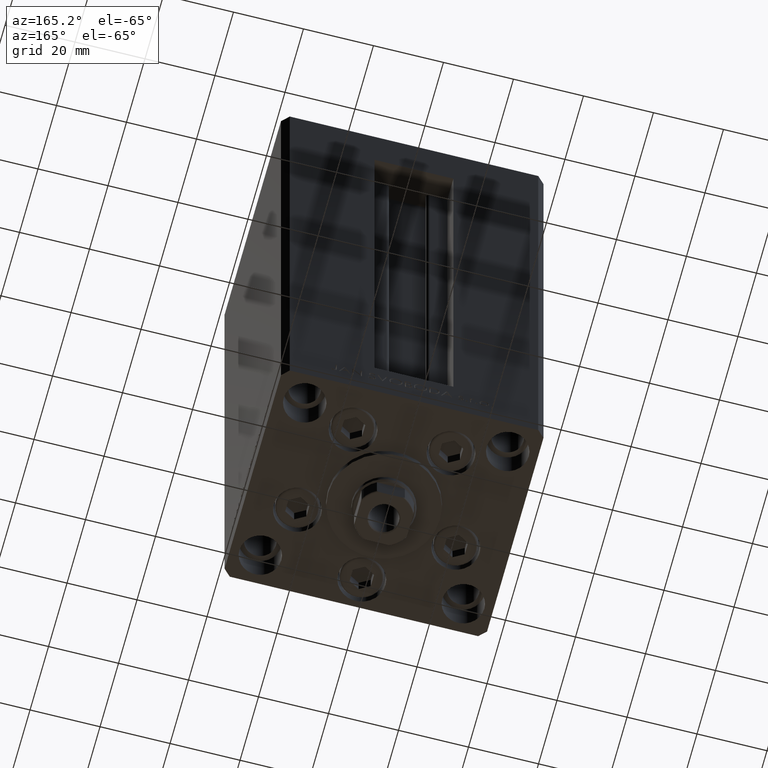
[diagram: clean part render]
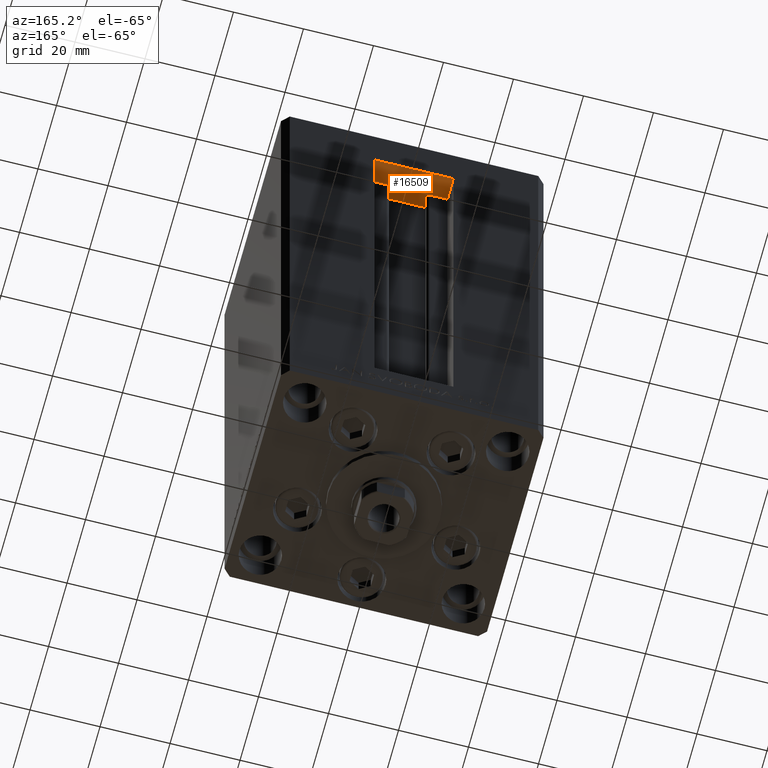
[diagram: same view with one face highlighted and labeled with its STEP entity id]
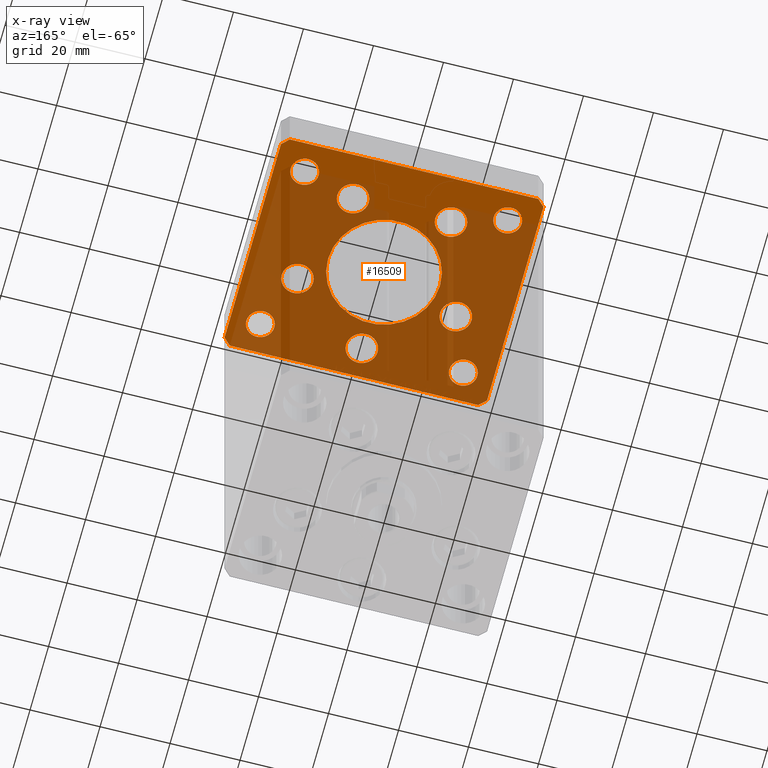
[diagram: x-ray of the same camera — body ghosted, the highlighted face saturated]
A machine part, auxiliary view. The second image highlights one B-rep face of the part: STEP entity #16509.
The next image is the same camera in x-ray: the body ghosted, the highlighted face saturated — about 77% of this face is hidden behind the body in this view.
In plain terms, the highlighted planar face has unit normal (0, 0, 1).
Its self-contained STEP definition (entity closure, byte-faithful):
#410 = ORIENTED_EDGE ( 'NONE', *, *, #39543, .F. ) ;
#433 = ORIENTED_EDGE ( 'NONE', *, *, #23960, .F. ) ;
#523 = CARTESIAN_POINT ( 'NONE',  ( 2.939152317953647500E-15, -24.00000000000000000, -15.00000000000000000 ) ) ;
#935 = VERTEX_POINT ( 'NONE', #26343 ) ;
#1130 = EDGE_CURVE ( 'NONE', #17500, #26608, #20383, .T. ) ;
#1135 = CARTESIAN_POINT ( 'NONE',  ( -29.00000000000001066, -23.99999999999999289, -15.00000000000000000 ) ) ;
#1164 = CARTESIAN_POINT ( 'NONE',  ( 22.62741699796951877, -8.000000000000000000, -15.00000000000000000 ) ) ;
#1463 = CIRCLE ( 'NONE', #15893, 4.499999999999999112 ) ;
#1628 = EDGE_CURVE ( 'NONE', #44426, #14708, #7550, .T. ) ;
#2019 = CIRCLE ( 'NONE', #29289, 16.00000000000000000 ) ;
#2107 = VERTEX_POINT ( 'NONE', #4165 ) ;
#2177 = EDGE_LOOP ( 'NONE', ( #3129, #42105 ) ) ;
#2377 = EDGE_CURVE ( 'NONE', #24605, #42538, #17900, .T. ) ;
#2591 = CIRCLE ( 'NONE', #15440, 4.500000000000001776 ) ;
#2601 = DIRECTION ( 'NONE',  ( 0.000000000000000000, 0.000000000000000000, 1.000000000000000000 ) ) ;
#2948 = CARTESIAN_POINT ( 'NONE',  ( 37.49999999999992184, 30.50000000000001066, -15.00000000000000000 ) ) ;
#3129 = ORIENTED_EDGE ( 'NONE', *, *, #29669, .F. ) ;
#3382 = DIRECTION ( 'NONE',  ( 0.000000000000000000, -0.000000000000000000, -1.000000000000000000 ) ) ;
#3447 = DIRECTION ( 'NONE',  ( 1.000000000000000000, 0.000000000000000000, 0.000000000000000000 ) ) ;
#3512 = VERTEX_POINT ( 'NONE', #40614 ) ;
#3766 = EDGE_LOOP ( 'NONE', ( #39933, #10278, #10930, #16009, #35287, #12317, #44558, #36524 ) ) ;
#3919 = DIRECTION ( 'NONE',  ( 0.7071067811865474617, -0.7071067811865474617, 0.000000000000000000 ) ) ;
#4007 = CIRCLE ( 'NONE', #46509, 4.499999999999997335 ) ;
#4165 = CARTESIAN_POINT ( 'NONE',  ( -16.00000000000000000, 1.959434878635764737E-15, -15.00000000000000000 ) ) ;
#4386 = VERTEX_POINT ( 'NONE', #14781 ) ;
#4736 = CIRCLE ( 'NONE', #30424, 4.500000000000005329 ) ;
#4826 = LINE ( 'NONE', #42527, #31459 ) ;
#5318 = EDGE_CURVE ( 'NONE', #32528, #43760, #7215, .T. ) ;
#5419 = AXIS2_PLACEMENT_3D ( 'NONE', #27533, #16465, #19998 ) ;
#5450 = AXIS2_PLACEMENT_3D ( 'NONE', #37735, #10610, #41751 ) ;
#5647 = DIRECTION ( 'NONE',  ( 0.000000000000000000, -0.000000000000000000, -1.000000000000000000 ) ) ;
#5883 = CARTESIAN_POINT ( 'NONE',  ( 35.50000000000000711, -32.50000000000000711, -15.00000000000000000 ) ) ;
#6025 = FACE_BOUND ( 'NONE', #49178, .T. ) ;
#6036 = EDGE_CURVE ( 'NONE', #31344, #2107, #43680, .T. ) ;
#6660 = CARTESIAN_POINT ( 'NONE',  ( -13.99106857963322703, 19.49999999999999645, -15.00000000000000000 ) ) ;
#6667 = VECTOR ( 'NONE', #10110, 1000.000000000000000 ) ;
#6685 = CARTESIAN_POINT ( 'NONE',  ( 13.99106857963322348, 19.50000000000000000, -15.00000000000000000 ) ) ;
#7066 = ORIENTED_EDGE ( 'NONE', *, *, #14424, .F. ) ;
#7164 = CARTESIAN_POINT ( 'NONE',  ( -27.12741699796951877, -8.000000000000005329, -15.00000000000000000 ) ) ;
#7215 = LINE ( 'NONE', #45630, #48476 ) ;
#7333 = CARTESIAN_POINT ( 'NONE',  ( 29.00000000000001066, -23.99999999999999289, -15.00000000000000000 ) ) ;
#7376 = DIRECTION ( 'NONE',  ( -0.7071067811865482389, 0.7071067811865469066, 0.000000000000000000 ) ) ;
#7550 = CIRCLE ( 'NONE', #48366, 4.000000000000003553 ) ;
#7980 = DIRECTION ( 'NONE',  ( 1.000000000000000000, 0.000000000000000000, 0.000000000000000000 ) ) ;
#7995 = CARTESIAN_POINT ( 'NONE',  ( 16.00000000000000000, 0.000000000000000000, -15.00000000000000000 ) ) ;
#8220 = DIRECTION ( 'NONE',  ( 1.000000000000000000, 0.000000000000000000, 0.000000000000000000 ) ) ;
#8333 = DIRECTION ( 'NONE',  ( 0.000000000000000000, -0.000000000000000000, -1.000000000000000000 ) ) ;
#8583 = DIRECTION ( 'NONE',  ( 1.000000000000000000, 0.000000000000000000, 0.000000000000000000 ) ) ;
#8584 = ORIENTED_EDGE ( 'NONE', *, *, #9956, .F. ) ;
#8808 = ORIENTED_EDGE ( 'NONE', *, *, #30426, .F. ) ;
#8936 = DIRECTION ( 'NONE',  ( -1.000000000000000000, -1.954618001100629052E-16, 0.000000000000000000 ) ) ;
#9010 = AXIS2_PLACEMENT_3D ( 'NONE', #37997, #26195, #15387 ) ;
#9126 = ORIENTED_EDGE ( 'NONE', *, *, #49667, .T. ) ;
#9663 = EDGE_LOOP ( 'NONE', ( #30572, #410 ) ) ;
#9952 = EDGE_CURVE ( 'NONE', #26693, #935, #25395, .T. ) ;
#9956 = EDGE_CURVE ( 'NONE', #24048, #45895, #11734, .T. ) ;
#9979 = VERTEX_POINT ( 'NONE', #42635 ) ;
#10106 = CARTESIAN_POINT ( 'NONE',  ( -37.50000000000001421, 30.49999999999998579, -15.00000000000000000 ) ) ;
#10110 = DIRECTION ( 'NONE',  ( -1.478780668045802821E-15, 1.000000000000000000, 0.000000000000000000 ) ) ;
#10278 = ORIENTED_EDGE ( 'NONE', *, *, #16080, .F. ) ;
#10295 = DIRECTION ( 'NONE',  ( -0.000000000000000000, 0.000000000000000000, 1.000000000000000000 ) ) ;
#10300 = EDGE_CURVE ( 'NONE', #39198, #9979, #28591, .T. ) ;
#10536 = FACE_BOUND ( 'NONE', #43389, .T. ) ;
#10610 = DIRECTION ( 'NONE',  ( -0.000000000000000000, -0.000000000000000000, -1.000000000000000000 ) ) ;
#10616 = VECTOR ( 'NONE', #7376, 999.9999999999998863 ) ;
#10930 = ORIENTED_EDGE ( 'NONE', *, *, #28644, .F. ) ;
#11043 = AXIS2_PLACEMENT_3D ( 'NONE', #40941, #10295, #29630 ) ;
#11353 = CARTESIAN_POINT ( 'NONE',  ( 0.000000000000000000, 0.000000000000000000, -15.00000000000000000 ) ) ;
#11734 = CIRCLE ( 'NONE', #40640, 4.499999999999997335 ) ;
#11917 = VECTOR ( 'NONE', #16739, 1000.000000000000000 ) ;
#11933 = CARTESIAN_POINT ( 'NONE',  ( -13.99106857963322703, 19.49999999999999645, -15.00000000000000000 ) ) ;
#12317 = ORIENTED_EDGE ( 'NONE', *, *, #43392, .F. ) ;
#12975 = LINE ( 'NONE', #20761, #11917 ) ;
#13716 = CARTESIAN_POINT ( 'NONE',  ( 4.500000000000003553, -24.00000000000000000, -15.00000000000000000 ) ) ;
#13776 = CIRCLE ( 'NONE', #41843, 4.499999999999999112 ) ;
#13807 = CIRCLE ( 'NONE', #9010, 4.000000000000000000 ) ;
#13831 = CARTESIAN_POINT ( 'NONE',  ( 35.49999999999992184, 32.50000000000000711, -15.00000000000000000 ) ) ;
#13977 = DIRECTION ( 'NONE',  ( 1.000000000000000000, 0.000000000000000000, 0.000000000000000000 ) ) ;
#14300 = FACE_BOUND ( 'NONE', #2177, .T. ) ;
#14424 = EDGE_CURVE ( 'NONE', #14708, #44426, #47185, .T. ) ;
#14544 = PLANE ( 'NONE',  #11043 ) ;
#14608 = DIRECTION ( 'NONE',  ( -1.000000000000000000, 0.000000000000000000, 0.000000000000000000 ) ) ;
#14646 = LINE ( 'NONE', #23181, #10616 ) ;
#14708 = VERTEX_POINT ( 'NONE', #37675 ) ;
#14781 = CARTESIAN_POINT ( 'NONE',  ( -18.49106857963322526, 19.49999999999999645, -15.00000000000000000 ) ) ;
#14896 = AXIS2_PLACEMENT_3D ( 'NONE', #22875, #22386, #34431 ) ;
#15365 = VERTEX_POINT ( 'NONE', #13831 ) ;
#15387 = DIRECTION ( 'NONE',  ( 1.000000000000000000, 0.000000000000000000, 0.000000000000000000 ) ) ;
#15440 = AXIS2_PLACEMENT_3D ( 'NONE', #24738, #5647, #48566 ) ;
#15533 = CARTESIAN_POINT ( 'NONE',  ( -35.49999999999998579, -32.50000000000001421, -15.00000000000000000 ) ) ;
#15893 = AXIS2_PLACEMENT_3D ( 'NONE', #6660, #18694, #45578 ) ;
#16009 = ORIENTED_EDGE ( 'NONE', *, *, #33660, .F. ) ;
#16080 = EDGE_CURVE ( 'NONE', #19402, #32528, #35317, .T. ) ;
#16113 = EDGE_CURVE ( 'NONE', #41833, #48073, #33559, .T. ) ;
#16465 = DIRECTION ( 'NONE',  ( 0.000000000000000000, -0.000000000000000000, -1.000000000000000000 ) ) ;
#16509 = ADVANCED_FACE ( 'NONE', ( #33643, #10536, #40444, #40688, #14300, #22081, #25852, #6025, #48957, #44690, #37164 ), #14544, .F. ) ;
#16739 = DIRECTION ( 'NONE',  ( -0.7071067811865426878, -0.7071067811865524577, 0.000000000000000000 ) ) ;
#16921 = DIRECTION ( 'NONE',  ( 0.000000000000000000, 0.000000000000000000, 1.000000000000000000 ) ) ;
#17003 = EDGE_CURVE ( 'NONE', #35168, #34355, #17456, .T. ) ;
#17456 = CIRCLE ( 'NONE', #5419, 4.500000000000005329 ) ;
#17500 = VERTEX_POINT ( 'NONE', #33220 ) ;
#17900 = CIRCLE ( 'NONE', #23532, 4.500000000000001776 ) ;
#17973 = ORIENTED_EDGE ( 'NONE', *, *, #1130, .T. ) ;
#18090 = CIRCLE ( 'NONE', #14896, 4.000000000000003553 ) ;
#18131 = LINE ( 'NONE', #32468, #6667 ) ;
#18673 = ORIENTED_EDGE ( 'NONE', *, *, #6036, .F. ) ;
#18694 = DIRECTION ( 'NONE',  ( 0.000000000000000000, -0.000000000000000000, -1.000000000000000000 ) ) ;
#19064 = LINE ( 'NONE', #42186, #43998 ) ;
#19402 = VERTEX_POINT ( 'NONE', #10106 ) ;
#19513 = DIRECTION ( 'NONE',  ( 0.000000000000000000, -0.000000000000000000, -1.000000000000000000 ) ) ;
#19998 = DIRECTION ( 'NONE',  ( 1.000000000000000000, 0.000000000000000000, 0.000000000000000000 ) ) ;
#20383 = CIRCLE ( 'NONE', #41255, 4.000000000000003553 ) ;
#20481 = DIRECTION ( 'NONE',  ( -1.000000000000000000, 0.000000000000000000, 0.000000000000000000 ) ) ;
#20761 = CARTESIAN_POINT ( 'NONE',  ( -35.50000000000002842, 32.49999999999999289, -15.00000000000000000 ) ) ;
#20944 = CARTESIAN_POINT ( 'NONE',  ( -29.00000000000001066, 24.00000000000000711, -15.00000000000000000 ) ) ;
#21616 = CIRCLE ( 'NONE', #42471, 4.500000000000000888 ) ;
#22013 = AXIS2_PLACEMENT_3D ( 'NONE', #11353, #8333, #8583 ) ;
#22081 = FACE_BOUND ( 'NONE', #40694, .T. ) ;
#22231 = ORIENTED_EDGE ( 'NONE', *, *, #2377, .F. ) ;
#22386 = DIRECTION ( 'NONE',  ( 0.000000000000000000, 0.000000000000000000, 1.000000000000000000 ) ) ;
#22875 = CARTESIAN_POINT ( 'NONE',  ( 29.00000000000001066, 24.00000000000000711, -15.00000000000000000 ) ) ;
#23137 = DIRECTION ( 'NONE',  ( -0.000000000000000000, -0.000000000000000000, -1.000000000000000000 ) ) ;
#23181 = CARTESIAN_POINT ( 'NONE',  ( 37.49999999999992184, 30.50000000000001066, -15.00000000000000000 ) ) ;
#23532 = AXIS2_PLACEMENT_3D ( 'NONE', #523, #27412, #46494 ) ;
#23545 = DIRECTION ( 'NONE',  ( 0.000000000000000000, -0.000000000000000000, -1.000000000000000000 ) ) ;
#23754 = LINE ( 'NONE', #28516, #36175 ) ;
#23783 = AXIS2_PLACEMENT_3D ( 'NONE', #20944, #16921, #47324 ) ;
#23802 = CARTESIAN_POINT ( 'NONE',  ( -29.00000000000001066, -23.99999999999999289, -15.00000000000000000 ) ) ;
#23960 = EDGE_CURVE ( 'NONE', #3512, #4386, #1463, .T. ) ;
#24044 = CARTESIAN_POINT ( 'NONE',  ( -35.50000000000002842, 32.49999999999999289, -15.00000000000000000 ) ) ;
#24048 = VERTEX_POINT ( 'NONE', #7164 ) ;
#24605 = VERTEX_POINT ( 'NONE', #13716 ) ;
#24738 = CARTESIAN_POINT ( 'NONE',  ( 2.939152317953647500E-15, -24.00000000000000000, -15.00000000000000000 ) ) ;
#25274 = CARTESIAN_POINT ( 'NONE',  ( -33.00000000000000711, -23.99999999999999289, -15.00000000000000000 ) ) ;
#25395 = CIRCLE ( 'NONE', #35008, 4.500000000000000888 ) ;
#25530 = EDGE_CURVE ( 'NONE', #43760, #49245, #19064, .T. ) ;
#25852 = FACE_BOUND ( 'NONE', #34174, .T. ) ;
#26195 = DIRECTION ( 'NONE',  ( 0.000000000000000000, 0.000000000000000000, 1.000000000000000000 ) ) ;
#26343 = CARTESIAN_POINT ( 'NONE',  ( 27.12741699796952233, -8.000000000000000000, -15.00000000000000000 ) ) ;
#26608 = VERTEX_POINT ( 'NONE', #43003 ) ;
#26693 = VERTEX_POINT ( 'NONE', #34834 ) ;
#27225 = EDGE_LOOP ( 'NONE', ( #30791, #7066 ) ) ;
#27317 = DIRECTION ( 'NONE',  ( 1.000000000000000000, 0.000000000000000000, 0.000000000000000000 ) ) ;
#27380 = CARTESIAN_POINT ( 'NONE',  ( 33.00000000000001421, -23.99999999999999289, -15.00000000000000000 ) ) ;
#27412 = DIRECTION ( 'NONE',  ( 0.000000000000000000, -0.000000000000000000, -1.000000000000000000 ) ) ;
#27522 = DIRECTION ( 'NONE',  ( -0.000000000000000000, -0.000000000000000000, -1.000000000000000000 ) ) ;
#27533 = CARTESIAN_POINT ( 'NONE',  ( 13.99106857963322348, 19.50000000000000000, -15.00000000000000000 ) ) ;
#28030 = CARTESIAN_POINT ( 'NONE',  ( -37.50000000000001421, 30.49999999999998579, -15.00000000000000000 ) ) ;
#28379 = EDGE_LOOP ( 'NONE', ( #8808, #41491 ) ) ;
#28516 = CARTESIAN_POINT ( 'NONE',  ( 35.49999999999992184, 32.50000000000000711, -15.00000000000000000 ) ) ;
#28591 = CIRCLE ( 'NONE', #23783, 4.000000000000000000 ) ;
#28644 = EDGE_CURVE ( 'NONE', #48038, #19402, #12975, .T. ) ;
#29068 = ORIENTED_EDGE ( 'NONE', *, *, #31324, .F. ) ;
#29289 = AXIS2_PLACEMENT_3D ( 'NONE', #49666, #23545, #27317 ) ;
#29431 = CARTESIAN_POINT ( 'NONE',  ( -4.499999999999999112, -24.00000000000000000, -15.00000000000000000 ) ) ;
#29630 = DIRECTION ( 'NONE',  ( 1.000000000000000000, 0.000000000000000000, 0.000000000000000000 ) ) ;
#29669 = EDGE_CURVE ( 'NONE', #34355, #35168, #4736, .T. ) ;
#30424 = AXIS2_PLACEMENT_3D ( 'NONE', #6685, #40860, #13977 ) ;
#30426 = EDGE_CURVE ( 'NONE', #935, #26693, #21616, .T. ) ;
#30432 = VERTEX_POINT ( 'NONE', #2948 ) ;
#30572 = ORIENTED_EDGE ( 'NONE', *, *, #16113, .F. ) ;
#30791 = ORIENTED_EDGE ( 'NONE', *, *, #1628, .F. ) ;
#31188 = EDGE_LOOP ( 'NONE', ( #18673, #35100 ) ) ;
#31324 = EDGE_CURVE ( 'NONE', #45895, #24048, #4007, .T. ) ;
#31344 = VERTEX_POINT ( 'NONE', #7995 ) ;
#31431 = CARTESIAN_POINT ( 'NONE',  ( 18.49106857963322881, 19.50000000000000000, -15.00000000000000000 ) ) ;
#31459 = VECTOR ( 'NONE', #31707, 1000.000000000000000 ) ;
#31580 = DIRECTION ( 'NONE',  ( 0.000000000000000000, -0.000000000000000000, -1.000000000000000000 ) ) ;
#31707 = DIRECTION ( 'NONE',  ( 0.7071067811865487940, 0.7071067811865463515, 0.000000000000000000 ) ) ;
#31795 = DIRECTION ( 'NONE',  ( 4.550094363217855288E-16, -1.000000000000000000, 0.000000000000000000 ) ) ;
#31838 = VERTEX_POINT ( 'NONE', #42050 ) ;
#32316 = ORIENTED_EDGE ( 'NONE', *, *, #36537, .F. ) ;
#32468 = CARTESIAN_POINT ( 'NONE',  ( 37.50000000000001421, -30.50000000000000711, -15.00000000000000000 ) ) ;
#32528 = VERTEX_POINT ( 'NONE', #36666 ) ;
#33213 = ORIENTED_EDGE ( 'NONE', *, *, #42201, .F. ) ;
#33220 = CARTESIAN_POINT ( 'NONE',  ( 33.00000000000001421, 24.00000000000000711, -15.00000000000000000 ) ) ;
#33364 = DIRECTION ( 'NONE',  ( 0.000000000000000000, -0.000000000000000000, -1.000000000000000000 ) ) ;
#33559 = CIRCLE ( 'NONE', #39986, 3.999999999999996447 ) ;
#33643 = FACE_BOUND ( 'NONE', #31188, .T. ) ;
#33660 = EDGE_CURVE ( 'NONE', #15365, #48038, #23754, .T. ) ;
#34174 = EDGE_LOOP ( 'NONE', ( #17973, #9126 ) ) ;
#34355 = VERTEX_POINT ( 'NONE', #31431 ) ;
#34359 = DIRECTION ( 'NONE',  ( -0.000000000000000000, -0.000000000000000000, -1.000000000000000000 ) ) ;
#34431 = DIRECTION ( 'NONE',  ( 1.000000000000000000, 0.000000000000000000, 0.000000000000000000 ) ) ;
#34834 = CARTESIAN_POINT ( 'NONE',  ( 18.12741699796951877, -8.000000000000000000, -15.00000000000000000 ) ) ;
#35008 = AXIS2_PLACEMENT_3D ( 'NONE', #1164, #31580, #7980 ) ;
#35100 = ORIENTED_EDGE ( 'NONE', *, *, #48671, .F. ) ;
#35168 = VERTEX_POINT ( 'NONE', #38973 ) ;
#35287 = ORIENTED_EDGE ( 'NONE', *, *, #41537, .F. ) ;
#35317 = LINE ( 'NONE', #28030, #48801 ) ;
#36175 = VECTOR ( 'NONE', #8936, 1000.000000000000000 ) ;
#36524 = ORIENTED_EDGE ( 'NONE', *, *, #25530, .F. ) ;
#36537 = EDGE_CURVE ( 'NONE', #4386, #3512, #13776, .T. ) ;
#36666 = CARTESIAN_POINT ( 'NONE',  ( -37.49999999999998579, -30.50000000000001421, -15.00000000000000000 ) ) ;
#36719 = EDGE_CURVE ( 'NONE', #9979, #39198, #13807, .T. ) ;
#36886 = EDGE_CURVE ( 'NONE', #49245, #31838, #4826, .T. ) ;
#37144 = CARTESIAN_POINT ( 'NONE',  ( -22.62741699796951877, -8.000000000000005329, -15.00000000000000000 ) ) ;
#37164 = FACE_BOUND ( 'NONE', #9663, .T. ) ;
#37383 = CARTESIAN_POINT ( 'NONE',  ( 22.62741699796951877, -8.000000000000000000, -15.00000000000000000 ) ) ;
#37672 = DIRECTION ( 'NONE',  ( 1.000000000000000000, 9.773090005503140331E-17, 0.000000000000000000 ) ) ;
#37675 = CARTESIAN_POINT ( 'NONE',  ( 25.00000000000000711, -23.99999999999999289, -15.00000000000000000 ) ) ;
#37735 = CARTESIAN_POINT ( 'NONE',  ( 29.00000000000001066, -23.99999999999999289, -15.00000000000000000 ) ) ;
#37997 = CARTESIAN_POINT ( 'NONE',  ( -29.00000000000001066, 24.00000000000000711, -15.00000000000000000 ) ) ;
#38128 = DIRECTION ( 'NONE',  ( 1.000000000000000000, 0.000000000000000000, 0.000000000000000000 ) ) ;
#38697 = CARTESIAN_POINT ( 'NONE',  ( -25.00000000000001066, 24.00000000000000711, -15.00000000000000000 ) ) ;
#38973 = CARTESIAN_POINT ( 'NONE',  ( 9.491068579633218150, 19.50000000000000000, -15.00000000000000000 ) ) ;
#39198 = VERTEX_POINT ( 'NONE', #38697 ) ;
#39543 = EDGE_CURVE ( 'NONE', #48073, #41833, #48242, .T. ) ;
#39933 = ORIENTED_EDGE ( 'NONE', *, *, #5318, .F. ) ;
#39986 = AXIS2_PLACEMENT_3D ( 'NONE', #1135, #27522, #20481 ) ;
#40444 = FACE_BOUND ( 'NONE', #47010, .T. ) ;
#40614 = CARTESIAN_POINT ( 'NONE',  ( -9.491068579633228808, 19.49999999999999645, -15.00000000000000000 ) ) ;
#40640 = AXIS2_PLACEMENT_3D ( 'NONE', #46884, #19513, #8220 ) ;
#40688 = FACE_BOUND ( 'NONE', #28379, .T. ) ;
#40694 = EDGE_LOOP ( 'NONE', ( #433, #32316 ) ) ;
#40860 = DIRECTION ( 'NONE',  ( 0.000000000000000000, -0.000000000000000000, -1.000000000000000000 ) ) ;
#40941 = CARTESIAN_POINT ( 'NONE',  ( 0.000000000000000000, 0.000000000000000000, -15.00000000000000000 ) ) ;
#41255 = AXIS2_PLACEMENT_3D ( 'NONE', #48826, #2601, #48326 ) ;
#41338 = DIRECTION ( 'NONE',  ( 1.000000000000000000, 0.000000000000000000, 0.000000000000000000 ) ) ;
#41491 = ORIENTED_EDGE ( 'NONE', *, *, #9952, .F. ) ;
#41537 = EDGE_CURVE ( 'NONE', #30432, #15365, #14646, .T. ) ;
#41751 = DIRECTION ( 'NONE',  ( -1.000000000000000000, 0.000000000000000000, 0.000000000000000000 ) ) ;
#41833 = VERTEX_POINT ( 'NONE', #47389 ) ;
#41843 = AXIS2_PLACEMENT_3D ( 'NONE', #11933, #3382, #41338 ) ;
#41850 = CARTESIAN_POINT ( 'NONE',  ( -18.12741699796952233, -8.000000000000005329, -15.00000000000000000 ) ) ;
#41900 = DIRECTION ( 'NONE',  ( -1.000000000000000000, 0.000000000000000000, 0.000000000000000000 ) ) ;
#42050 = CARTESIAN_POINT ( 'NONE',  ( 37.50000000000001421, -30.50000000000000711, -15.00000000000000000 ) ) ;
#42105 = ORIENTED_EDGE ( 'NONE', *, *, #17003, .F. ) ;
#42186 = CARTESIAN_POINT ( 'NONE',  ( -35.49999999999998579, -32.50000000000001421, -15.00000000000000000 ) ) ;
#42201 = EDGE_CURVE ( 'NONE', #42538, #24605, #2591, .T. ) ;
#42471 = AXIS2_PLACEMENT_3D ( 'NONE', #37383, #33364, #3447 ) ;
#42527 = CARTESIAN_POINT ( 'NONE',  ( 35.50000000000000711, -32.50000000000000711, -15.00000000000000000 ) ) ;
#42538 = VERTEX_POINT ( 'NONE', #29431 ) ;
#42635 = CARTESIAN_POINT ( 'NONE',  ( -33.00000000000000711, 24.00000000000000711, -15.00000000000000000 ) ) ;
#42807 = ORIENTED_EDGE ( 'NONE', *, *, #10300, .T. ) ;
#43003 = CARTESIAN_POINT ( 'NONE',  ( 25.00000000000000711, 24.00000000000000711, -15.00000000000000000 ) ) ;
#43389 = EDGE_LOOP ( 'NONE', ( #29068, #8584 ) ) ;
#43392 = EDGE_CURVE ( 'NONE', #31838, #30432, #18131, .T. ) ;
#43680 = CIRCLE ( 'NONE', #22013, 16.00000000000000000 ) ;
#43760 = VERTEX_POINT ( 'NONE', #15533 ) ;
#43998 = VECTOR ( 'NONE', #37672, 1000.000000000000000 ) ;
#44239 = AXIS2_PLACEMENT_3D ( 'NONE', #23802, #34359, #41900 ) ;
#44426 = VERTEX_POINT ( 'NONE', #27380 ) ;
#44558 = ORIENTED_EDGE ( 'NONE', *, *, #36886, .F. ) ;
#44690 = FACE_BOUND ( 'NONE', #27225, .T. ) ;
#45578 = DIRECTION ( 'NONE',  ( 1.000000000000000000, 0.000000000000000000, 0.000000000000000000 ) ) ;
#45630 = CARTESIAN_POINT ( 'NONE',  ( -37.49999999999998579, -30.50000000000001421, -15.00000000000000000 ) ) ;
#45895 = VERTEX_POINT ( 'NONE', #41850 ) ;
#46244 = ORIENTED_EDGE ( 'NONE', *, *, #36719, .T. ) ;
#46494 = DIRECTION ( 'NONE',  ( 1.000000000000000000, 0.000000000000000000, 0.000000000000000000 ) ) ;
#46509 = AXIS2_PLACEMENT_3D ( 'NONE', #37144, #49423, #38128 ) ;
#46884 = CARTESIAN_POINT ( 'NONE',  ( -22.62741699796951877, -8.000000000000005329, -15.00000000000000000 ) ) ;
#47010 = EDGE_LOOP ( 'NONE', ( #22231, #33213 ) ) ;
#47185 = CIRCLE ( 'NONE', #5450, 4.000000000000003553 ) ;
#47324 = DIRECTION ( 'NONE',  ( 1.000000000000000000, 0.000000000000000000, 0.000000000000000000 ) ) ;
#47389 = CARTESIAN_POINT ( 'NONE',  ( -25.00000000000001066, -23.99999999999999289, -15.00000000000000000 ) ) ;
#48038 = VERTEX_POINT ( 'NONE', #24044 ) ;
#48073 = VERTEX_POINT ( 'NONE', #25274 ) ;
#48242 = CIRCLE ( 'NONE', #44239, 3.999999999999996447 ) ;
#48326 = DIRECTION ( 'NONE',  ( 1.000000000000000000, 0.000000000000000000, 0.000000000000000000 ) ) ;
#48366 = AXIS2_PLACEMENT_3D ( 'NONE', #7333, #23137, #14608 ) ;
#48476 = VECTOR ( 'NONE', #3919, 1000.000000000000114 ) ;
#48566 = DIRECTION ( 'NONE',  ( 1.000000000000000000, 0.000000000000000000, 0.000000000000000000 ) ) ;
#48671 = EDGE_CURVE ( 'NONE', #2107, #31344, #2019, .T. ) ;
#48801 = VECTOR ( 'NONE', #31795, 1000.000000000000000 ) ;
#48826 = CARTESIAN_POINT ( 'NONE',  ( 29.00000000000001066, 24.00000000000000711, -15.00000000000000000 ) ) ;
#48957 = FACE_OUTER_BOUND ( 'NONE', #3766, .T. ) ;
#49178 = EDGE_LOOP ( 'NONE', ( #42807, #46244 ) ) ;
#49245 = VERTEX_POINT ( 'NONE', #5883 ) ;
#49423 = DIRECTION ( 'NONE',  ( 0.000000000000000000, -0.000000000000000000, -1.000000000000000000 ) ) ;
#49666 = CARTESIAN_POINT ( 'NONE',  ( 0.000000000000000000, 0.000000000000000000, -15.00000000000000000 ) ) ;
#49667 = EDGE_CURVE ( 'NONE', #26608, #17500, #18090, .T. ) ;